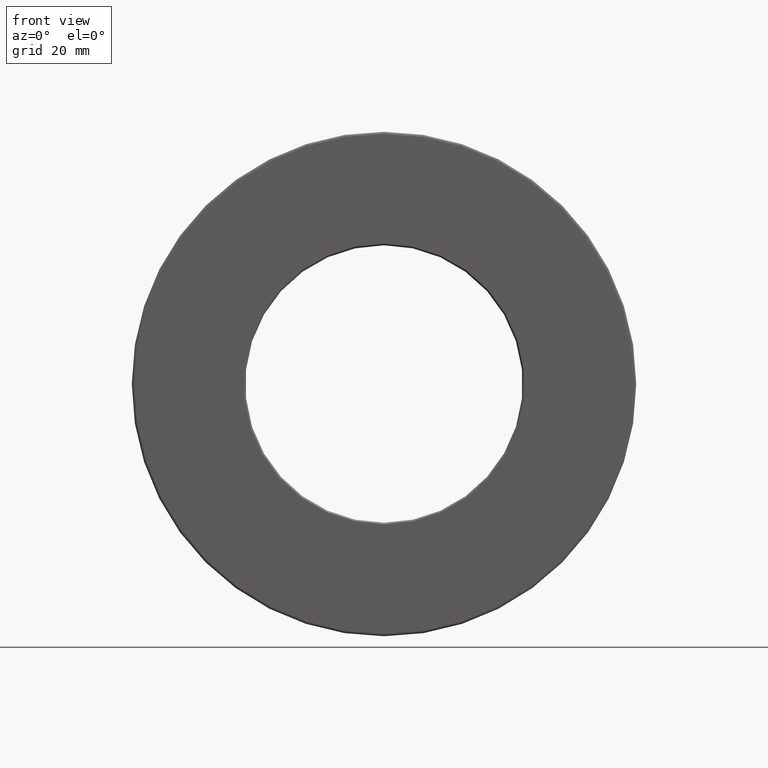
[diagram: clean part render]
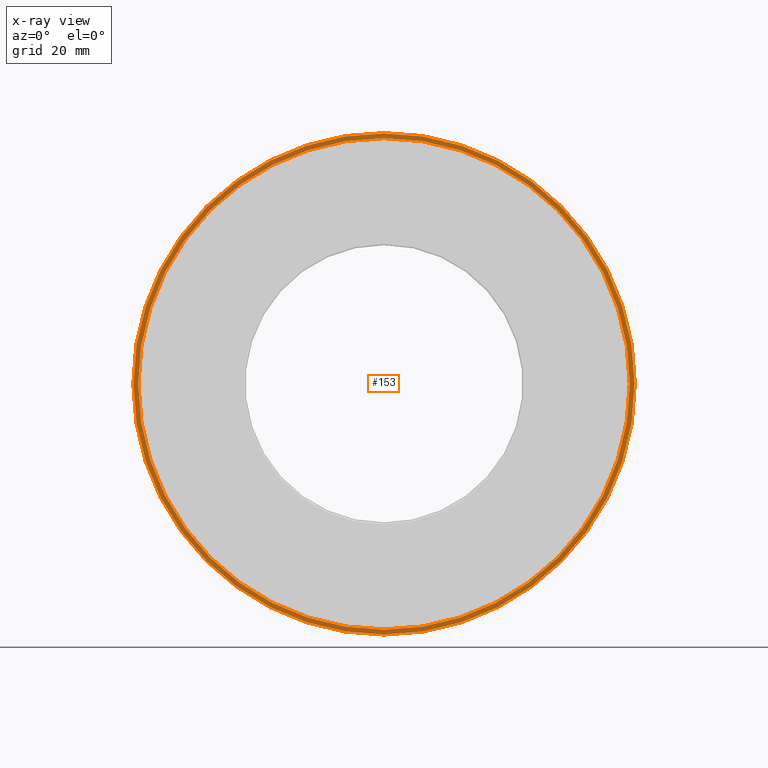
[diagram: x-ray — body ghosted, one internal face saturated and labeled with its STEP entity id]
A machine part, front view, then the same camera in x-ray: the body is ghosted and one INTERNAL B-rep face — a face not visible from any outside direction — is saturated and labeled: STEP entity #153.
In plain terms, the highlighted planar face has unit normal (-0, 1, 0).
Its self-contained STEP definition (entity closure, byte-faithful):
#40 = DIRECTION ( 'NONE',  ( -0.0000000000000000000, 1.000000000000000000, -0.0000000000000000000 ) ) ;
#65 = EDGE_CURVE ( 'NONE', #202, #202, #589, .T. ) ;
#104 = EDGE_CURVE ( 'NONE', #449, #449, #133, .T. ) ;
#124 = CARTESIAN_POINT ( 'NONE',  ( 0.0000000000000000000, 1.964999999999999900, 3.105000000000000400 ) ) ;
#133 = CIRCLE ( 'NONE', #278, 3.044999999999999900 ) ;
#137 = DIRECTION ( 'NONE',  ( 0.0000000000000000000, 0.0000000000000000000, 1.000000000000000000 ) ) ;
#144 = PLANE ( 'NONE',  #606 ) ;
#153 = ADVANCED_FACE ( 'NONE', ( #252, #233 ), #144, .F. ) ;
#155 = ORIENTED_EDGE ( 'NONE', *, *, #65, .F. ) ;
#166 = CARTESIAN_POINT ( 'NONE',  ( 0.0000000000000000000, 1.964999999999999900, 3.044999999999999900 ) ) ;
#183 = DIRECTION ( 'NONE',  ( 0.0000000000000000000, 0.0000000000000000000, 1.000000000000000000 ) ) ;
#189 = EDGE_LOOP ( 'NONE', ( #155 ) ) ;
#202 = VERTEX_POINT ( 'NONE', #124 ) ;
#233 = FACE_BOUND ( 'NONE', #519, .T. ) ;
#252 = FACE_OUTER_BOUND ( 'NONE', #189, .T. ) ;
#278 = AXIS2_PLACEMENT_3D ( 'NONE', #420, #552, #505 ) ;
#371 = AXIS2_PLACEMENT_3D ( 'NONE', #380, #40, #183 ) ;
#380 = CARTESIAN_POINT ( 'NONE',  ( 0.0000000000000000000, 1.964999999999999900, 0.0000000000000000000 ) ) ;
#418 = ORIENTED_EDGE ( 'NONE', *, *, #104, .T. ) ;
#420 = CARTESIAN_POINT ( 'NONE',  ( 0.0000000000000000000, 1.964999999999999900, 0.0000000000000000000 ) ) ;
#449 = VERTEX_POINT ( 'NONE', #166 ) ;
#505 = DIRECTION ( 'NONE',  ( 0.0000000000000000000, 0.0000000000000000000, 1.000000000000000000 ) ) ;
#512 = CARTESIAN_POINT ( 'NONE',  ( 0.0000000000000000000, 1.964999999999999900, 0.0000000000000000000 ) ) ;
#519 = EDGE_LOOP ( 'NONE', ( #418 ) ) ;
#551 = DIRECTION ( 'NONE',  ( -0.0000000000000000000, 1.000000000000000000, 0.0000000000000000000 ) ) ;
#552 = DIRECTION ( 'NONE',  ( -0.0000000000000000000, 1.000000000000000000, -0.0000000000000000000 ) ) ;
#589 = CIRCLE ( 'NONE', #371, 3.105000000000000400 ) ;
#606 = AXIS2_PLACEMENT_3D ( 'NONE', #512, #551, #137 ) ;